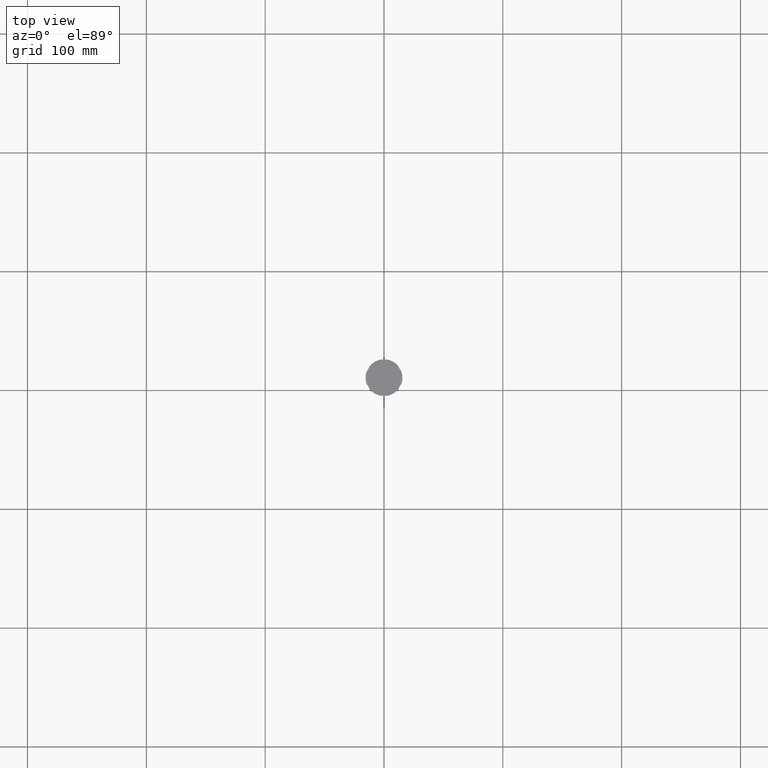
[diagram: clean part render]
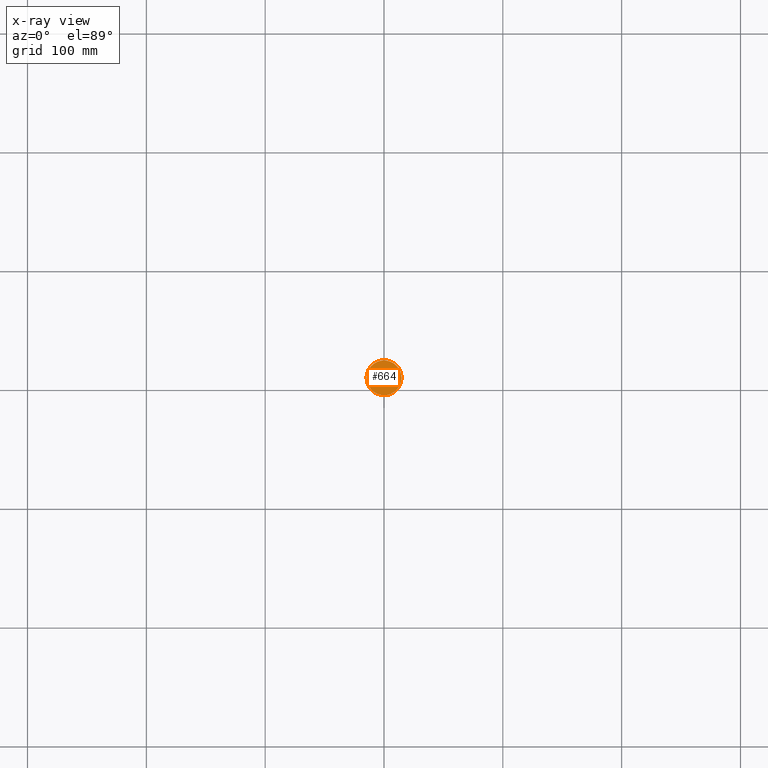
[diagram: x-ray — body ghosted, one internal face saturated and labeled with its STEP entity id]
A machine part, top view, then the same camera in x-ray: the body is ghosted and one INTERNAL B-rep face — a face not visible from any outside direction — is saturated and labeled: STEP entity #664.
In plain terms, the highlighted planar face has unit normal (0, 0, -1).
Its self-contained STEP definition (entity closure, byte-faithful):
#18 = FACE_OUTER_BOUND ( 'NONE', #1382, .T. ) ;
#107 = CARTESIAN_POINT ( 'NONE',  ( 0.000000000000000000, 0.000000000000000000, -12.00000000000000000 ) ) ;
#238 = VERTEX_POINT ( 'NONE', #941 ) ;
#664 = ADVANCED_FACE ( 'NONE', ( #18 ), #1367, .F. ) ;
#694 = CIRCLE ( 'NONE', #1065, 14.70000000000000107 ) ;
#845 = ORIENTED_EDGE ( 'NONE', *, *, #1632, .T. ) ;
#890 = CARTESIAN_POINT ( 'NONE',  ( 0.000000000000000000, 0.000000000000000000, -12.00000000000000000 ) ) ;
#941 = CARTESIAN_POINT ( 'NONE',  ( 14.70000000000000107, 1.818600496733819553E-15, -12.00000000000000000 ) ) ;
#1065 = AXIS2_PLACEMENT_3D ( 'NONE', #1777, #2676, #1989 ) ;
#1123 = DIRECTION ( 'NONE',  ( 0.000000000000000000, 0.000000000000000000, -1.000000000000000000 ) ) ;
#1295 = AXIS2_PLACEMENT_3D ( 'NONE', #107, #1670, #1699 ) ;
#1367 = PLANE ( 'NONE',  #2603 ) ;
#1382 = EDGE_LOOP ( 'NONE', ( #845, #1576 ) ) ;
#1576 = ORIENTED_EDGE ( 'NONE', *, *, #2361, .T. ) ;
#1632 = EDGE_CURVE ( 'NONE', #1901, #238, #694, .T. ) ;
#1670 = DIRECTION ( 'NONE',  ( -0.000000000000000000, -0.000000000000000000, 1.000000000000000000 ) ) ;
#1699 = DIRECTION ( 'NONE',  ( -1.000000000000000000, 0.000000000000000000, 0.000000000000000000 ) ) ;
#1716 = CARTESIAN_POINT ( 'NONE',  ( -14.70000000000000107, 0.000000000000000000, -12.00000000000000000 ) ) ;
#1777 = CARTESIAN_POINT ( 'NONE',  ( 0.000000000000000000, 0.000000000000000000, -12.00000000000000000 ) ) ;
#1781 = DIRECTION ( 'NONE',  ( -1.000000000000000000, 0.000000000000000000, -0.000000000000000000 ) ) ;
#1815 = CIRCLE ( 'NONE', #1295, 14.70000000000000107 ) ;
#1901 = VERTEX_POINT ( 'NONE', #1716 ) ;
#1989 = DIRECTION ( 'NONE',  ( -1.000000000000000000, 0.000000000000000000, 0.000000000000000000 ) ) ;
#2361 = EDGE_CURVE ( 'NONE', #238, #1901, #1815, .T. ) ;
#2603 = AXIS2_PLACEMENT_3D ( 'NONE', #890, #1123, #1781 ) ;
#2676 = DIRECTION ( 'NONE',  ( -0.000000000000000000, -0.000000000000000000, 1.000000000000000000 ) ) ;